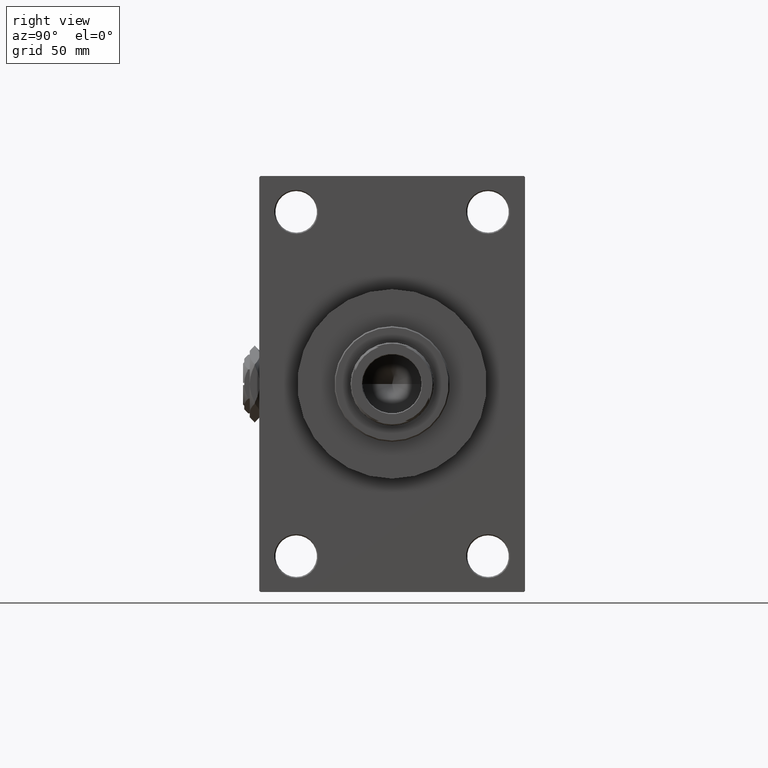
[diagram: clean part render]
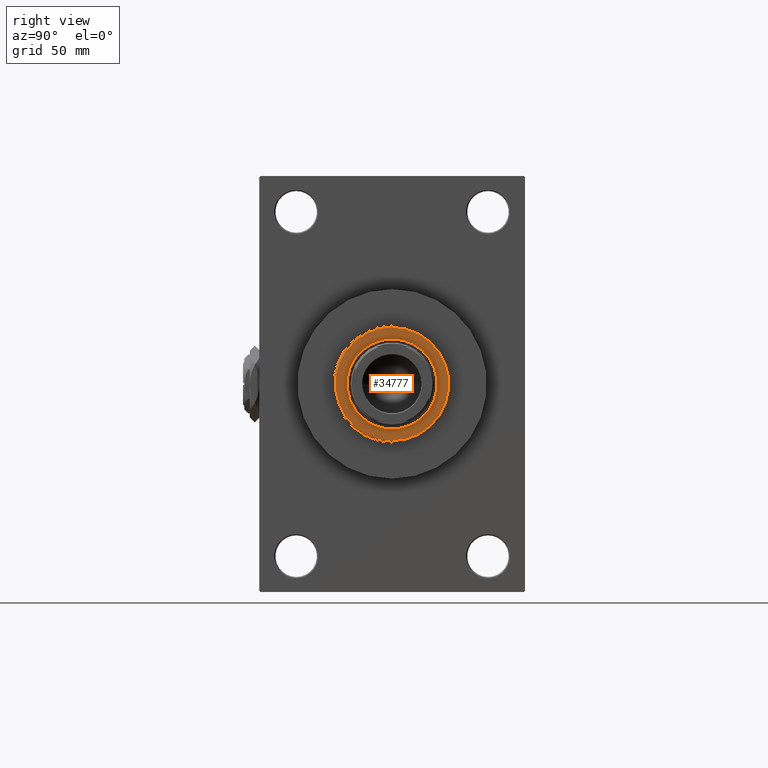
[diagram: same view with one face highlighted and labeled with its STEP entity id]
A machine part, right view. The second image highlights one B-rep face of the part: STEP entity #34777.
In plain terms, the highlighted planar face has unit normal (1, 0, 0).
Its self-contained STEP definition (entity closure, byte-faithful):
#1050 = EDGE_LOOP ( 'NONE', ( #36972, #29685 ) ) ;
#3276 = EDGE_CURVE ( 'NONE', #13861, #28900, #28489, .T. ) ;
#3573 = CIRCLE ( 'NONE', #9964, 19.50000000000000000 ) ;
#4036 = VERTEX_POINT ( 'NONE', #46577 ) ;
#7422 = CARTESIAN_POINT ( 'NONE',  ( 0.000000000000000000, 0.000000000000000000, 52.25999999999999801 ) ) ;
#9821 = CIRCLE ( 'NONE', #22611, 24.49999999999998224 ) ;
#9964 = AXIS2_PLACEMENT_3D ( 'NONE', #32116, #47371, #20592 ) ;
#10321 = DIRECTION ( 'NONE',  ( 0.000000000000000000, 0.000000000000000000, 1.000000000000000000 ) ) ;
#10888 = AXIS2_PLACEMENT_3D ( 'NONE', #24311, #32315, #40070 ) ;
#11429 = AXIS2_PLACEMENT_3D ( 'NONE', #14572, #10321, #37094 ) ;
#12647 = ORIENTED_EDGE ( 'NONE', *, *, #41284, .F. ) ;
#13861 = VERTEX_POINT ( 'NONE', #36975 ) ;
#14572 = CARTESIAN_POINT ( 'NONE',  ( 0.000000000000000000, 0.000000000000000000, 52.25999999999999801 ) ) ;
#20592 = DIRECTION ( 'NONE',  ( 1.000000000000000000, 0.000000000000000000, 0.000000000000000000 ) ) ;
#22611 = AXIS2_PLACEMENT_3D ( 'NONE', #32480, #24476, #43246 ) ;
#24311 = CARTESIAN_POINT ( 'NONE',  ( 0.000000000000000000, 0.000000000000000000, 52.25999999999999801 ) ) ;
#24476 = DIRECTION ( 'NONE',  ( 0.000000000000000000, 0.000000000000000000, 1.000000000000000000 ) ) ;
#26137 = CARTESIAN_POINT ( 'NONE',  ( -19.50000000000000000, 2.388061258337338939E-15, 52.25999999999999801 ) ) ;
#28489 = CIRCLE ( 'NONE', #10888, 24.49999999999998224 ) ;
#28900 = VERTEX_POINT ( 'NONE', #34389 ) ;
#29685 = ORIENTED_EDGE ( 'NONE', *, *, #3276, .T. ) ;
#30428 = DIRECTION ( 'NONE',  ( 1.000000000000000000, 0.000000000000000000, 0.000000000000000000 ) ) ;
#32116 = CARTESIAN_POINT ( 'NONE',  ( 0.000000000000000000, 0.000000000000000000, 52.25999999999999801 ) ) ;
#32315 = DIRECTION ( 'NONE',  ( 0.000000000000000000, 0.000000000000000000, 1.000000000000000000 ) ) ;
#32480 = CARTESIAN_POINT ( 'NONE',  ( 0.000000000000000000, 0.000000000000000000, 52.25999999999999801 ) ) ;
#34389 = CARTESIAN_POINT ( 'NONE',  ( -24.49999999999998224, 0.000000000000000000, 52.25999999999999801 ) ) ;
#34777 = ADVANCED_FACE ( 'NONE', ( #41597, #41101 ), #44837, .T. ) ;
#35188 = EDGE_CURVE ( 'NONE', #28900, #13861, #9821, .T. ) ;
#35429 = EDGE_LOOP ( 'NONE', ( #41462, #12647 ) ) ;
#36972 = ORIENTED_EDGE ( 'NONE', *, *, #35188, .T. ) ;
#36975 = CARTESIAN_POINT ( 'NONE',  ( 24.49999999999998224, 3.031000827889698072E-15, 52.25999999999999801 ) ) ;
#37073 = AXIS2_PLACEMENT_3D ( 'NONE', #7422, #48955, #30428 ) ;
#37094 = DIRECTION ( 'NONE',  ( 1.000000000000000000, 0.000000000000000000, -0.000000000000000000 ) ) ;
#40070 = DIRECTION ( 'NONE',  ( 1.000000000000000000, 0.000000000000000000, 0.000000000000000000 ) ) ;
#41101 = FACE_OUTER_BOUND ( 'NONE', #1050, .T. ) ;
#41284 = EDGE_CURVE ( 'NONE', #43545, #4036, #48279, .T. ) ;
#41462 = ORIENTED_EDGE ( 'NONE', *, *, #42862, .F. ) ;
#41597 = FACE_BOUND ( 'NONE', #35429, .T. ) ;
#42862 = EDGE_CURVE ( 'NONE', #4036, #43545, #3573, .T. ) ;
#43246 = DIRECTION ( 'NONE',  ( 1.000000000000000000, 0.000000000000000000, 0.000000000000000000 ) ) ;
#43545 = VERTEX_POINT ( 'NONE', #26137 ) ;
#44837 = PLANE ( 'NONE',  #11429 ) ;
#46577 = CARTESIAN_POINT ( 'NONE',  ( 19.50000000000000000, 0.000000000000000000, 52.25999999999999801 ) ) ;
#47371 = DIRECTION ( 'NONE',  ( 0.000000000000000000, 0.000000000000000000, 1.000000000000000000 ) ) ;
#48279 = CIRCLE ( 'NONE', #37073, 19.50000000000000000 ) ;
#48955 = DIRECTION ( 'NONE',  ( 0.000000000000000000, 0.000000000000000000, 1.000000000000000000 ) ) ;